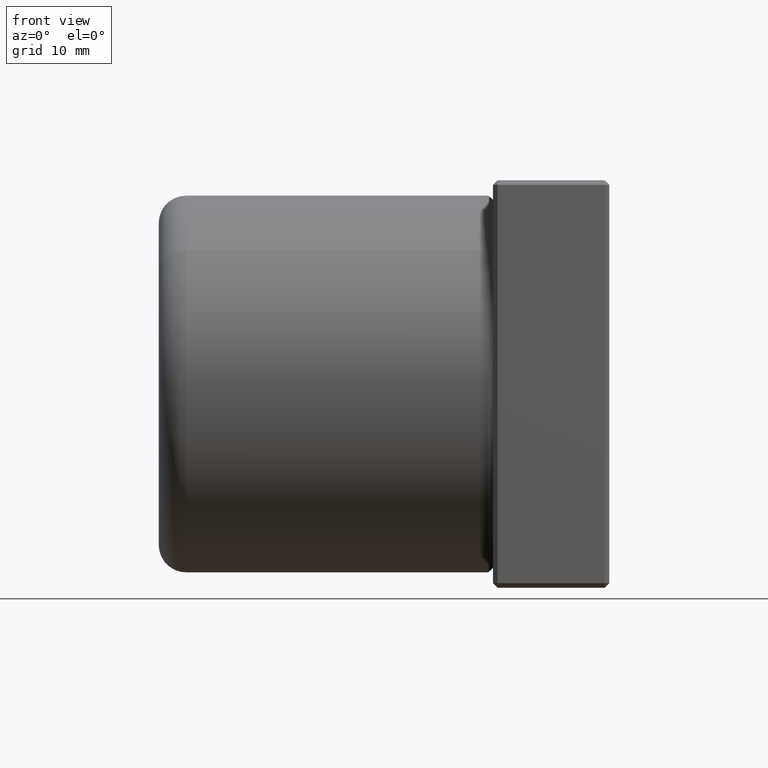
[diagram: clean part render]
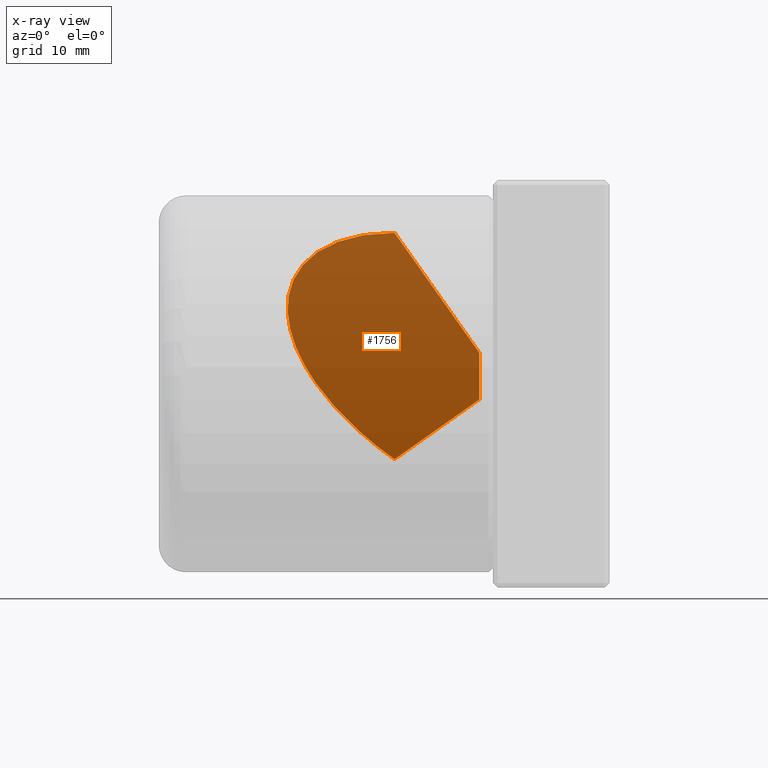
[diagram: x-ray — body ghosted, one internal face saturated and labeled with its STEP entity id]
A machine part, front view, then the same camera in x-ray: the body is ghosted and one INTERNAL B-rep face — a face not visible from any outside direction — is saturated and labeled: STEP entity #1756.
In plain terms, the highlighted planar face has unit normal (0.5774, 0.7065, 0.4093).
Its self-contained STEP definition (entity closure, byte-faithful):
#260 = CARTESIAN_POINT ( 'NONE',  ( 8.244314546679332200, 21.42777054116401200, 4.157902071384301100 ) ) ;
#522 = ORIENTED_EDGE ( 'NONE', *, *, #10919, .F. ) ;
#882 = CARTESIAN_POINT ( 'NONE',  ( 34.99999999999999300, -0.005237913914907244000, 3.411742740546468400 ) ) ;
#1159 = DIRECTION ( 'NONE',  ( -0.5773502691896248400, -0.001253533483535352000, 0.8164956186780633100 ) ) ;
#1756 = ADVANCED_FACE ( 'NONE', ( #9138 ), #11798, .T. ) ;
#2491 = LINE ( 'NONE', #11425, #11871 ) ;
#3063 = CARTESIAN_POINT ( 'NONE',  ( 34.99999999999999300, 1.476018463766448000, 0.8552037683931109600 ) ) ;
#3071 = VERTEX_POINT ( 'NONE', #882 ) ;
#3410 = CARTESIAN_POINT ( 'NONE',  ( 37.41246927062441300, -6.505213034913026600E-014, -7.329206686002010000E-014 ) ) ;
#3824 = CARTESIAN_POINT ( 'NONE',  ( 25.74520738104637700, -0.02533176863384490500, 16.49998055457934900 ) ) ;
#4064 = CARTESIAN_POINT ( 'NONE',  ( 37.41246927062441300, -6.505213034913026600E-014, -7.329206686002010000E-014 ) ) ;
#4354 = DIRECTION ( 'NONE',  ( 0.5773502691896250600, 0.001253533483535352000, -0.8164956186780632000 ) ) ;
#4503 = LINE ( 'NONE', #4064, #7891 ) ;
#5110 = EDGE_CURVE ( 'NONE', #3071, #11575, #2491, .T. ) ;
#5163 = ORIENTED_EDGE ( 'NONE', *, *, #9238, .F. ) ;
#5407 = AXIS2_PLACEMENT_3D ( 'NONE', #3410, #9949, #4354 ) ;
#5492 =( BOUNDED_CURVE ( )  B_SPLINE_CURVE ( 3, ( #9553, #9587, #260, #6832 ),
 .UNSPECIFIED., .F., .F. ) 
 B_SPLINE_CURVE_WITH_KNOTS ( ( 4, 4 ),
 ( 2.094395102393196200, 4.188790204786391400 ),
 .UNSPECIFIED. ) 
 CURVE ( )  GEOMETRIC_REPRESENTATION_ITEM ( )  RATIONAL_B_SPLINE_CURVE ( ( 1.000000000000000000, 0.6666666666666666300, 0.6666666666666666300, 1.000000000000000000 ) ) 
 REPRESENTATION_ITEM ( '' )  );
#6326 = ORIENTED_EDGE ( 'NONE', *, *, #10979, .F. ) ;
#6597 = VERTEX_POINT ( 'NONE', #7019 ) ;
#6832 = CARTESIAN_POINT ( 'NONE',  ( 25.74520738104639500, 14.30206820653182300, -8.228052322130096700 ) ) ;
#7019 = CARTESIAN_POINT ( 'NONE',  ( 25.74520738104639500, 14.30206820653182300, -8.228052322130096700 ) ) ;
#7891 = VECTOR ( 'NONE', #10614, 1000.000000000000000 ) ;
#8028 = VECTOR ( 'NONE', #8701, 1000.000000000000200 ) ;
#8205 = VERTEX_POINT ( 'NONE', #9084 ) ;
#8304 = LINE ( 'NONE', #3063, #8028 ) ;
#8701 = DIRECTION ( 'NONE',  ( 3.885780586188044900E-016, -0.5013289837848087200, 0.8652567538120062900 ) ) ;
#9084 = CARTESIAN_POINT ( 'NONE',  ( 34.99999999999999300, 2.957274841447804700, -1.701335203760247800 ) ) ;
#9138 = FACE_OUTER_BOUND ( 'NONE', #11793, .T. ) ;
#9238 = EDGE_CURVE ( 'NONE', #8205, #3071, #8304, .T. ) ;
#9553 = CARTESIAN_POINT ( 'NONE',  ( 25.74520738104637700, -0.02533176863384490500, 16.49998055457934900 ) ) ;
#9587 = CARTESIAN_POINT ( 'NONE',  ( 8.244314546679339300, 14.26407055358117000, 16.52191850973900600 ) ) ;
#9924 = ORIENTED_EDGE ( 'NONE', *, *, #5110, .F. ) ;
#9949 = DIRECTION ( 'NONE',  ( 0.5773502691896267300, 0.7064791811121259300, 0.4093334011802672900 ) ) ;
#10614 = DIRECTION ( 'NONE',  ( 0.5773502691896256200, -0.7077327145956626700, 0.4071622174977944700 ) ) ;
#10919 = EDGE_CURVE ( 'NONE', #11575, #6597, #5492, .T. ) ;
#10979 = EDGE_CURVE ( 'NONE', #6597, #8205, #4503, .T. ) ;
#11425 = CARTESIAN_POINT ( 'NONE',  ( 37.41246927062441300, -6.505213034913026600E-014, -7.329206686002010000E-014 ) ) ;
#11575 = VERTEX_POINT ( 'NONE', #3824 ) ;
#11793 = EDGE_LOOP ( 'NONE', ( #5163, #6326, #522, #9924 ) ) ;
#11798 = PLANE ( 'NONE',  #5407 ) ;
#11871 = VECTOR ( 'NONE', #1159, 1000.000000000000200 ) ;